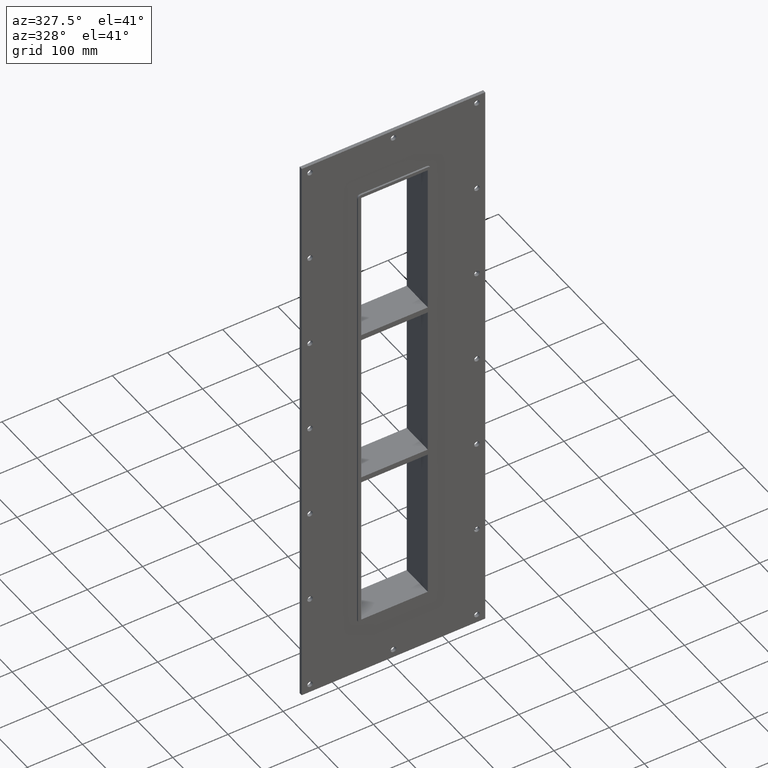
[diagram: clean part render]
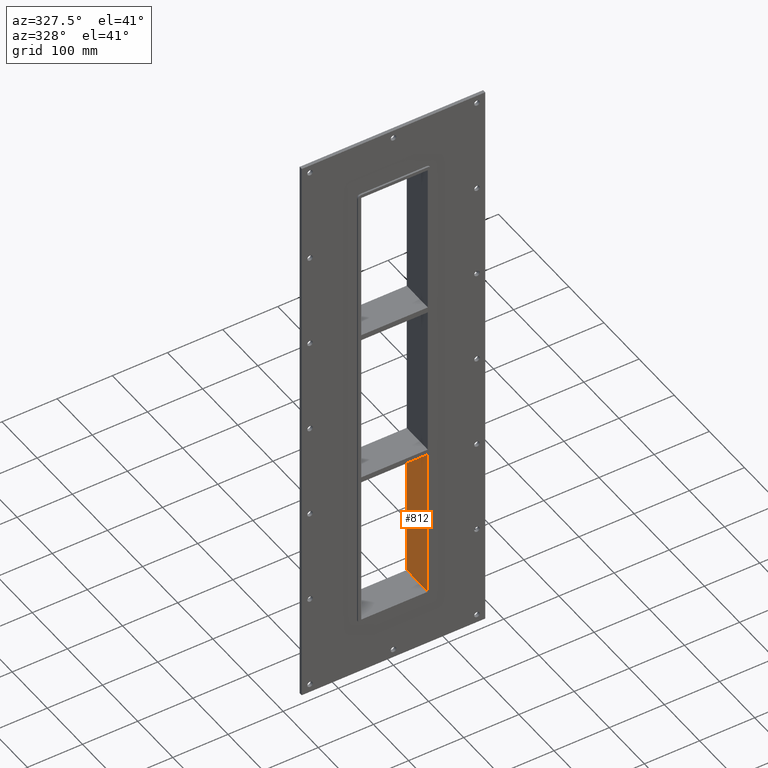
[diagram: same view with one face highlighted and labeled with its STEP entity id]
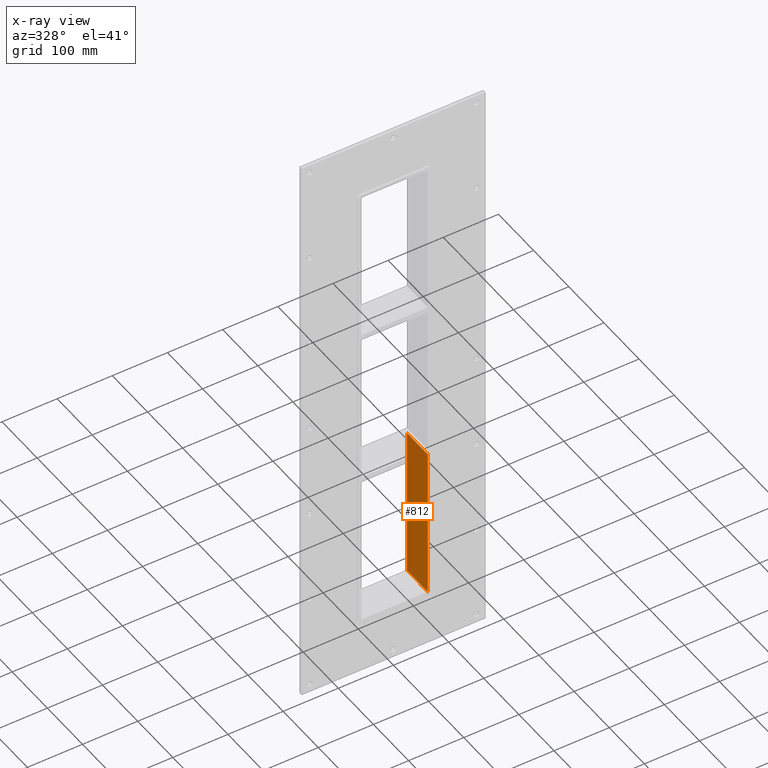
[diagram: x-ray of the same camera — body ghosted, the highlighted face saturated]
A machine part, auxiliary view. The second image highlights one B-rep face of the part: STEP entity #812.
The next image is the same camera in x-ray: the body ghosted, the highlighted face saturated — about 0% of this face is hidden behind the body in this view.
In plain terms, the highlighted planar face has unit normal (1, 0, 0).
Its self-contained STEP definition (entity closure, byte-faithful):
#694=CARTESIAN_POINT('',(60.249999999996362,-3.0,-149.00000000000927));
#695=VERTEX_POINT('',#694);
#712=CARTESIAN_POINT('',(60.249999999996369,57.0,-149.00000000000927));
#713=VERTEX_POINT('',#712);
#720=CARTESIAN_POINT('',(60.25,-3.0,-149.00000000000929));
#721=DIRECTION('',(0.0,1.0,0.0));
#722=VECTOR('',#721,60.000000000000007);
#723=LINE('',#720,#722);
#724=EDGE_CURVE('',#695,#713,#723,.T.);
#782=CARTESIAN_POINT('',(60.25,0.0,427.0));
#783=DIRECTION('',(1.0,0.0,0.0));
#784=DIRECTION('',(0.0,0.0,-1.0));
#785=AXIS2_PLACEMENT_3D('',#782,#783,#784);
#786=PLANE('',#785);
#787=ORIENTED_EDGE('',*,*,#724,.T.);
#788=CARTESIAN_POINT('',(60.25,57.0,-427.0));
#789=VERTEX_POINT('',#788);
#790=CARTESIAN_POINT('',(60.25,57.0,-427.00000000000006));
#791=DIRECTION('',(0.0,0.0,1.0));
#792=VECTOR('',#791,277.99999999999079);
#793=LINE('',#790,#792);
#794=EDGE_CURVE('',#789,#713,#793,.T.);
#795=ORIENTED_EDGE('',*,*,#794,.F.);
#796=CARTESIAN_POINT('',(60.25,-3.0,-427.0));
#797=VERTEX_POINT('',#796);
#798=CARTESIAN_POINT('',(60.25,56.999999999999993,-427.0));
#799=DIRECTION('',(0.0,-1.0,0.0));
#800=VECTOR('',#799,59.999999999999993);
#801=LINE('',#798,#800);
#802=EDGE_CURVE('',#789,#797,#801,.T.);
#803=ORIENTED_EDGE('',*,*,#802,.T.);
#804=CARTESIAN_POINT('',(60.25,-3.0,-149.00000000000927));
#805=DIRECTION('',(0.0,0.0,-1.0));
#806=VECTOR('',#805,277.99999999999079);
#807=LINE('',#804,#806);
#808=EDGE_CURVE('',#695,#797,#807,.T.);
#809=ORIENTED_EDGE('',*,*,#808,.F.);
#810=EDGE_LOOP('',(#787,#795,#803,#809));
#811=FACE_OUTER_BOUND('',#810,.T.);
#812=ADVANCED_FACE('',(#811),#786,.F.);